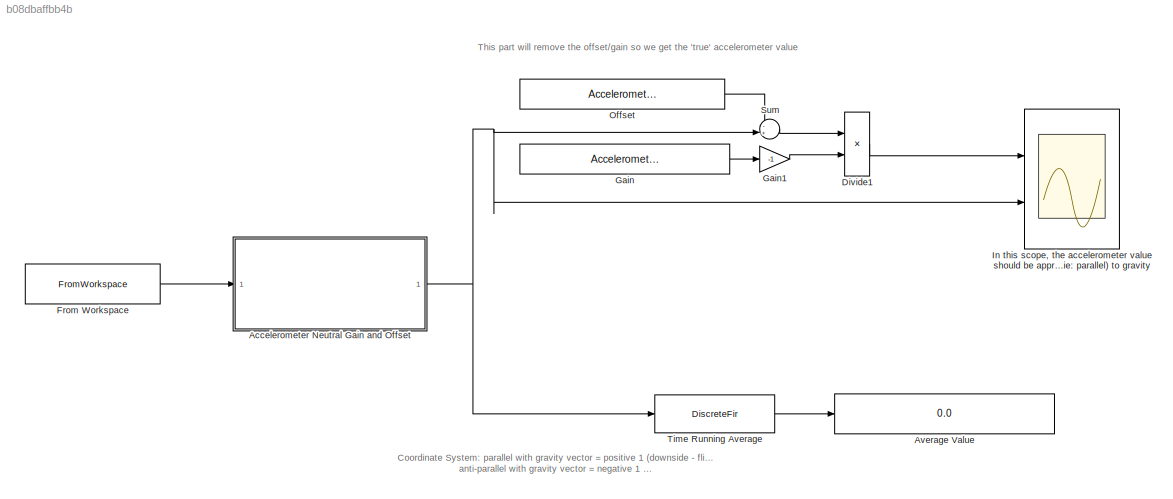
MODEL slx_b08dbaffbb4b
KIND model
CONFIG AbsTol = auto
CONFIG FixedStep = 1/400
CONFIG MaxStep = auto
CONFIG MinStep = auto
CONFIG RelTol = 1e-3
CONFIG SampleTimeConstraint = Unconstrained
CONFIG Solver = ode45
CONFIG SolverMode = Auto
CONFIG SolverName = ode45
CONFIG StartTime = 0.0
CONFIG StopTime = Recorded_Accelerometer.time(end)
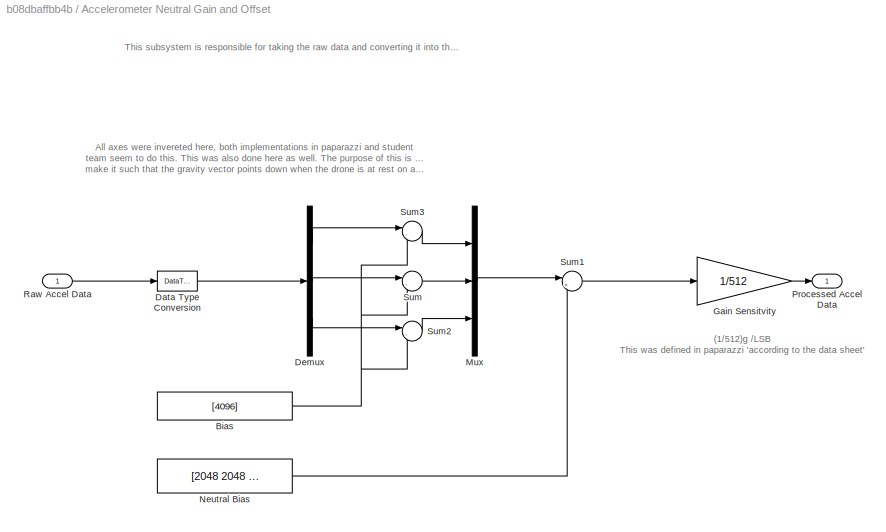
BLOCK [SubSystem] Accelerometer Neutral Gain and Offset
  Ports = [1, 1]
  RequestExecContextInheritance = off
BLOCK [Constant] Accelerometer Neutral Gain and Offset/Bias
  Value = [4096]
BLOCK [DataTypeConversion] Accelerometer Neutral Gain and Offset/Data Type Conversion
  OutDataTypeStr = int16
  RndMeth = Floor
  SaturateOnIntegerOverflow = off
BLOCK [Demux] Accelerometer Neutral Gain and Offset/Demux
  DisplayOption = bar
  Outputs = 3
  Ports = [1, 3]
BLOCK [Gain] Accelerometer Neutral Gain and Offset/Gain Sensitvity
  Gain = 1/512
  OutDataTypeStr = Inherit: Inherit via internal rule
  ParamDataTypeStr = Inherit: Inherit via internal rule
  SaturateOnIntegerOverflow = off
BLOCK [Mux] Accelerometer Neutral Gain and Offset/Mux
  DisplayOption = bar
  Inputs = 3
  Ports = [3, 1]
BLOCK [Constant] Accelerometer Neutral Gain and Offset/Neutral Bias
  Value = [2048 2048 2048]
BLOCK [Outport] Accelerometer Neutral Gain and Offset/Processed Accel Data
  IconDisplay = Port number
BLOCK [Inport] Accelerometer Neutral Gain and Offset/Raw Accel Data
  IconDisplay = Port number
BLOCK [Sum] Accelerometer Neutral Gain and Offset/Sum
  IconShape = round
  InputSameDT = off
  Inputs = |-+
  OutDataTypeStr = Inherit: Inherit via internal rule
  Ports = [2, 1]
  SaturateOnIntegerOverflow = off
BLOCK [Sum] Accelerometer Neutral Gain and Offset/Sum1
  IconShape = round
  InputSameDT = off
  Inputs = |+-
  OutDataTypeStr = Inherit: Inherit via internal rule
  Ports = [2, 1]
  SaturateOnIntegerOverflow = off
BLOCK [Sum] Accelerometer Neutral Gain and Offset/Sum2
  IconShape = round
  InputSameDT = off
  Inputs = |-+
  OutDataTypeStr = Inherit: Inherit via internal rule
  Ports = [2, 1]
  SaturateOnIntegerOverflow = off
BLOCK [Sum] Accelerometer Neutral Gain and Offset/Sum3
  IconShape = round
  InputSameDT = off
  Inputs = |-+
  OutDataTypeStr = Inherit: Inherit via internal rule
  Ports = [2, 1]
  SaturateOnIntegerOverflow = off
BLOCK [Display] Average Value
  Decimation = 1
  Ports = [1]
BLOCK [Product] Divide1
  InputSameDT = off
  Inputs = */
  OutDataTypeStr = Inherit: Inherit via internal rule
  Ports = [2, 1]
  RndMeth = Floor
  SaturateOnIntegerOverflow = off
BLOCK [FromWorkspace] From Workspace
  SampleTime = 1/400
  VariableName = Recorded_Accelerometer
  ZeroCross = on
BLOCK [Constant] Gain
  Value = Accelerometer_360deg_calibration.Gains
BLOCK [Gain] Gain1
  Gain = -1
  OutDataTypeStr = Inherit: Inherit via internal rule
  ParamDataTypeStr = Inherit: Inherit via internal rule
  SaturateOnIntegerOverflow = off
BLOCK [Scope] In this scope, the accelerometer value should be approximately 1 for 1 axis and 0 for the other 2 axis. The data was recorded with each axis perfectly aligned (ie: parallel) to gravity
  DataFormat = StructureWithTime
  Floating = off
  LimitDataPoints = off
  NumInputPorts = 2
  Ports = [2]
  SampleTime = 0
  SaveName = ScopeData2
  ShowLegends = off
  TimeRange = 7.423345884884347
  YMax = 0.04794829597177959~1.249038461538462
  YMin = -0.03831037494310437~0.4471153846153855
BLOCK [Constant] Offset
  Value = Accelerometer_360deg_calibration.Offsets
BLOCK [Sum] Sum
  IconShape = round
  InputSameDT = off
  Inputs = -+|
  OutDataTypeStr = Inherit: Inherit via internal rule
  Ports = [2, 1]
  SaturateOnIntegerOverflow = off
BLOCK [DiscreteFir] Time Running Average
  Coefficients = ones(1,100)*(1/100)
  Ports = [1, 1]
  SampleTime = 1/400
ANNOTATION (root): Coordinate System: parallel with gravity vector = positive 1 (downside - flipped same direction as gravity) anti-parallel with gravity vector = negative 1 (upside - flipped opposite gravity)
ANNOTATION (root): This part will remove the offset/gain so we get the 'true' accelerometer value
ANNOTATION Accelerometer Neutral Gain and Offset: (1/512)g /LSB This was defined in paparazzi 'according to the data sheet'
ANNOTATION Accelerometer Neutral Gain and Offset: All axes were invereted here, both implementations in paparazzi and student team seem to do this. This was also done here as well. The purpose of this is to make it such that the gravity vector points down when the drone is at rest on a non-inclined plane
ANNOTATION Accelerometer Neutral Gain and Offset: This subsystem is responsible for taking the raw data and converting it into the correct units, Gs (1 unit of earth gravity 9.81 m/s^2).
NET Accelerometer Neutral Gain and Offset/Bias:1 -> Accelerometer Neutral Gain and Offset/Sum2:2, Accelerometer Neutral Gain and Offset/Sum3:2, Accelerometer Neutral Gain and Offset/Sum:2
LINE Accelerometer Neutral Gain and Offset/Data Type Conversion:1 -> Accelerometer Neutral Gain and Offset/Demux:1
LINE Accelerometer Neutral Gain and Offset/Demux:1 -> Accelerometer Neutral Gain and Offset/Sum3:1
LINE Accelerometer Neutral Gain and Offset/Demux:2 -> Accelerometer Neutral Gain and Offset/Sum:1
LINE Accelerometer Neutral Gain and Offset/Demux:3 -> Accelerometer Neutral Gain and Offset/Sum2:1
LINE Accelerometer Neutral Gain and Offset/Gain Sensitvity:1 -> Accelerometer Neutral Gain and Offset/Processed Accel Data:1
LINE Accelerometer Neutral Gain and Offset/Mux:1 -> Accelerometer Neutral Gain and Offset/Sum1:1
LINE Accelerometer Neutral Gain and Offset/Neutral Bias:1 -> Accelerometer Neutral Gain and Offset/Sum1:2
LINE Accelerometer Neutral Gain and Offset/Raw Accel Data:1 -> Accelerometer Neutral Gain and Offset/Data Type Conversion:1
LINE Accelerometer Neutral Gain and Offset/Sum1:1 -> Accelerometer Neutral Gain and Offset/Gain Sensitvity:1
LINE Accelerometer Neutral Gain and Offset/Sum2:1 -> Accelerometer Neutral Gain and Offset/Mux:3
LINE Accelerometer Neutral Gain and Offset/Sum3:1 -> Accelerometer Neutral Gain and Offset/Mux:1
LINE Accelerometer Neutral Gain and Offset/Sum:1 -> Accelerometer Neutral Gain and Offset/Mux:2
NET Accelerometer Neutral Gain and Offset:1 -> In this scope, the accelerometer value should be approximately 1 for 1 axis and 0 for the other 2 axis. The data was recorded with each axis perfectly aligned (ie: parallel) to gravity:2, Sum:2, Time Running Average:1
LINE Divide1:1 -> In this scope, the accelerometer value should be approximately 1 for 1 axis and 0 for the other 2 axis. The data was recorded with each axis perfectly aligned (ie: parallel) to gravity:1
LINE From Workspace:1 -> Accelerometer Neutral Gain and Offset:1
LINE Gain1:1 -> Divide1:2
LINE Gain:1 -> Gain1:1
LINE Offset:1 -> Sum:1
LINE Sum:1 -> Divide1:1
LINE Time Running Average:1 -> Average Value:1
note: NET lines group one-source signal fan-out (src -> all destinations, sorted); 1:1 wires keep LINE
